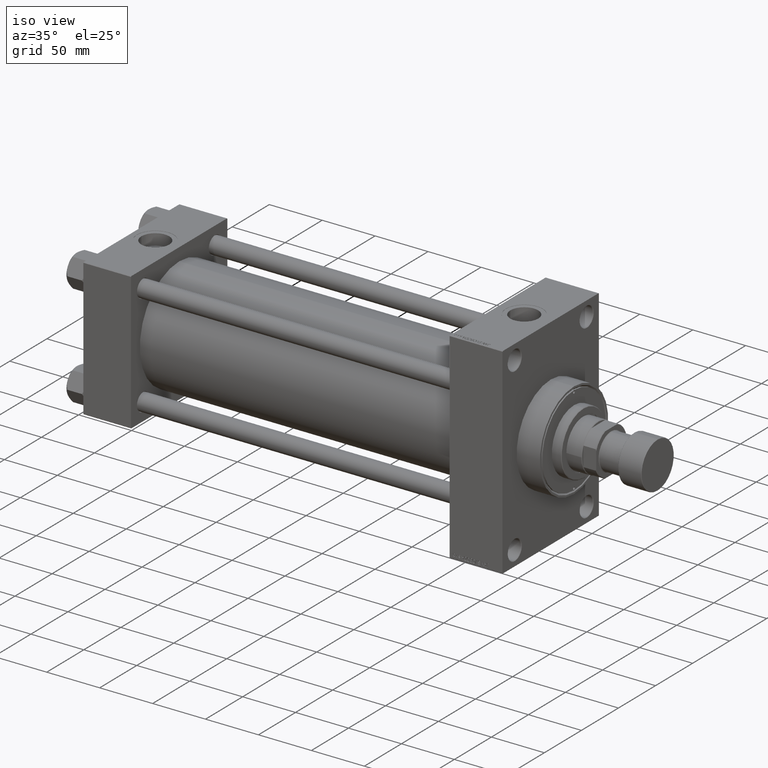
[diagram: clean part render]
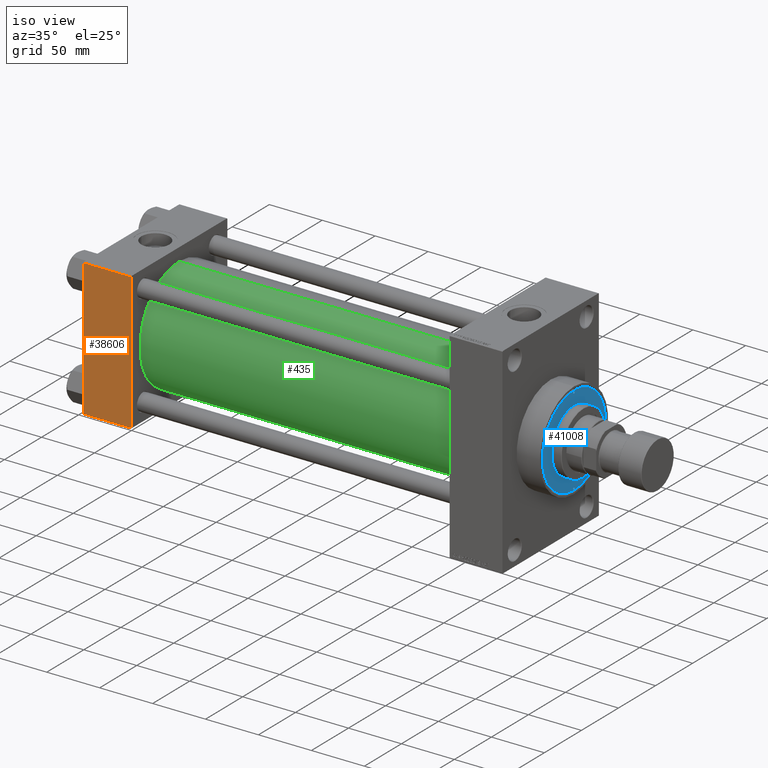
[diagram: same view with three faces highlighted in distinct colors, each labeled with its STEP entity id]
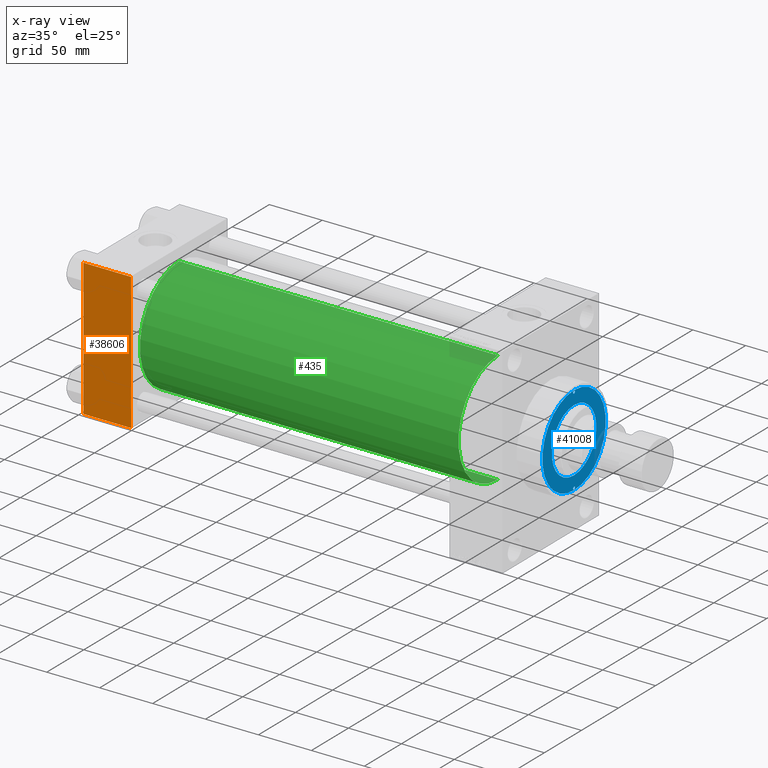
[diagram: x-ray of the same camera — body ghosted, the three highlighted faces saturated]
A machine part, iso view with three faces highlighted in distinct colors.
The next image is the same camera in x-ray (body ghosted, the three faces saturated) — at least one of them is partly hidden behind the body in this view.
Their STEP definitions:

[orange] entity #38606 — the highlighted planar face has unit normal (0, 1, 0).
#3236 = LINE ( 'NONE', #32996, #31542 ) ;
#4190 = DIRECTION ( 'NONE',  ( 0.000000000000000000, 0.000000000000000000, -1.000000000000000000 ) ) ;
#4713 = EDGE_CURVE ( 'NONE', #28928, #41843, #36770, .T. ) ;
#8077 = CARTESIAN_POINT ( 'NONE',  ( 45.00000000000000000, -65.00000000000000000, 65.00000000000000000 ) ) ;
#8187 = VERTEX_POINT ( 'NONE', #32136 ) ;
#13032 = CARTESIAN_POINT ( 'NONE',  ( 45.00000000000000000, -65.00000000000000000, 64.50000000000000000 ) ) ;
#13394 = CARTESIAN_POINT ( 'NONE',  ( 45.00000000000000000, -65.00000000000000000, 64.50000000000000000 ) ) ;
#14826 = CARTESIAN_POINT ( 'NONE',  ( 45.00000000000000000, -65.00000000000000000, -64.49999999999991473 ) ) ;
#15809 = VECTOR ( 'NONE', #22130, 1000.000000000000000 ) ;
#16319 = VECTOR ( 'NONE', #42233, 1000.000000000000000 ) ;
#17159 = EDGE_CURVE ( 'NONE', #34565, #8187, #19875, .T. ) ;
#19875 = LINE ( 'NONE', #13032, #28679 ) ;
#22130 = DIRECTION ( 'NONE',  ( 1.000000000000000000, 0.000000000000000000, 0.000000000000000000 ) ) ;
#22543 = EDGE_CURVE ( 'NONE', #34565, #41843, #45185, .T. ) ;
#23877 = ORIENTED_EDGE ( 'NONE', *, *, #30632, .T. ) ;
#27774 = ORIENTED_EDGE ( 'NONE', *, *, #22543, .F. ) ;
#27896 = DIRECTION ( 'NONE',  ( -1.000000000000000000, 0.000000000000000000, 0.000000000000000000 ) ) ;
#28384 = PLANE ( 'NONE',  #36396 ) ;
#28583 = CARTESIAN_POINT ( 'NONE',  ( 45.00000000000000000, -65.00000000000000000, -64.49999999999991473 ) ) ;
#28639 = CARTESIAN_POINT ( 'NONE',  ( 45.00000000000000000, -65.00000000000000000, 65.00000000000000000 ) ) ;
#28679 = VECTOR ( 'NONE', #27896, 1000.000000000000000 ) ;
#28928 = VERTEX_POINT ( 'NONE', #42275 ) ;
#30632 = EDGE_CURVE ( 'NONE', #8187, #28928, #3236, .T. ) ;
#31542 = VECTOR ( 'NONE', #4190, 1000.000000000000000 ) ;
#31550 = ORIENTED_EDGE ( 'NONE', *, *, #17159, .T. ) ;
#32136 = CARTESIAN_POINT ( 'NONE',  ( 0.000000000000000000, -65.00000000000000000, 64.50000000000000000 ) ) ;
#32996 = CARTESIAN_POINT ( 'NONE',  ( 0.000000000000000000, -65.00000000000000000, 65.00000000000000000 ) ) ;
#34565 = VERTEX_POINT ( 'NONE', #13394 ) ;
#35960 = DIRECTION ( 'NONE',  ( -0.000000000000000000, 1.000000000000000000, 0.000000000000000000 ) ) ;
#36396 = AXIS2_PLACEMENT_3D ( 'NONE', #28639, #35960, #36688 ) ;
#36688 = DIRECTION ( 'NONE',  ( 0.000000000000000000, -0.000000000000000000, 1.000000000000000000 ) ) ;
#36770 = LINE ( 'NONE', #14826, #15809 ) ;
#37844 = EDGE_LOOP ( 'NONE', ( #23877, #48015, #27774, #31550 ) ) ;
#38606 = ADVANCED_FACE ( 'NONE', ( #40353 ), #28384, .F. ) ;
#40353 = FACE_OUTER_BOUND ( 'NONE', #37844, .T. ) ;
#41843 = VERTEX_POINT ( 'NONE', #28583 ) ;
#42233 = DIRECTION ( 'NONE',  ( 0.000000000000000000, 0.000000000000000000, -1.000000000000000000 ) ) ;
#42275 = CARTESIAN_POINT ( 'NONE',  ( 0.000000000000000000, -65.00000000000000000, -64.49999999999991473 ) ) ;
#45185 = LINE ( 'NONE', #8077, #16319 ) ;
#48015 = ORIENTED_EDGE ( 'NONE', *, *, #4713, .T. ) ;

[blue] entity #41008 — the highlighted planar face has unit normal (1, -0, -0).
#1265 = DIRECTION ( 'NONE',  ( 1.000000000000000000, 0.000000000000000000, 0.000000000000000000 ) ) ;
#2850 = FACE_BOUND ( 'NONE', #22866, .T. ) ;
#2952 = AXIS2_PLACEMENT_3D ( 'NONE', #36038, #32369, #28725 ) ;
#3005 = DIRECTION ( 'NONE',  ( 1.000000000000000000, 0.000000000000000000, 0.000000000000000000 ) ) ;
#4077 = EDGE_CURVE ( 'NONE', #10957, #39966, #25925, .T. ) ;
#4369 = EDGE_CURVE ( 'NONE', #39966, #10957, #25156, .T. ) ;
#6024 = FACE_BOUND ( 'NONE', #19935, .T. ) ;
#6977 = DIRECTION ( 'NONE',  ( 1.000000000000000000, 0.000000000000000000, 0.000000000000000000 ) ) ;
#7398 = CARTESIAN_POINT ( 'NONE',  ( 41.00000000000000000, 0.000000000000000000, 43.25999999999999801 ) ) ;
#10370 = CARTESIAN_POINT ( 'NONE',  ( 42.75000000000000000, 5.235365066354935472E-15, 43.25999999999999801 ) ) ;
#10957 = VERTEX_POINT ( 'NONE', #37902 ) ;
#12267 = ORIENTED_EDGE ( 'NONE', *, *, #41777, .F. ) ;
#12398 = CIRCLE ( 'NONE', #48279, 1.250000000000001110 ) ;
#12535 = DIRECTION ( 'NONE',  ( 1.000000000000000000, 0.000000000000000000, 0.000000000000000000 ) ) ;
#13468 = DIRECTION ( 'NONE',  ( -0.000000000000000000, -0.000000000000000000, 1.000000000000000000 ) ) ;
#13604 = FACE_OUTER_BOUND ( 'NONE', #21065, .T. ) ;
#13820 = DIRECTION ( 'NONE',  ( -0.000000000000000000, -0.000000000000000000, 1.000000000000000000 ) ) ;
#14052 = DIRECTION ( 'NONE',  ( 0.000000000000000000, 0.000000000000000000, 1.000000000000000000 ) ) ;
#14492 = DIRECTION ( 'NONE',  ( -0.000000000000000000, -0.000000000000000000, 1.000000000000000000 ) ) ;
#14509 = ORIENTED_EDGE ( 'NONE', *, *, #40114, .F. ) ;
#14553 = CARTESIAN_POINT ( 'NONE',  ( -39.75000000000000000, 0.000000000000000000, 43.25999999999999801 ) ) ;
#14557 = CARTESIAN_POINT ( 'NONE',  ( 39.75000000000000000, 1.530808498934193050E-16, 43.25999999999999801 ) ) ;
#14780 = AXIS2_PLACEMENT_3D ( 'NONE', #45970, #41819, #12535 ) ;
#15278 = DIRECTION ( 'NONE',  ( -0.000000000000000000, -0.000000000000000000, 1.000000000000000000 ) ) ;
#16240 = AXIS2_PLACEMENT_3D ( 'NONE', #31508, #13468, #1265 ) ;
#19247 = DIRECTION ( 'NONE',  ( 0.000000000000000000, 0.000000000000000000, 1.000000000000000000 ) ) ;
#19421 = CARTESIAN_POINT ( 'NONE',  ( -41.00000000000000000, 0.000000000000000000, 43.25999999999999801 ) ) ;
#19855 = EDGE_CURVE ( 'NONE', #24864, #37878, #35664, .T. ) ;
#19935 = EDGE_LOOP ( 'NONE', ( #25264, #12267 ) ) ;
#21065 = EDGE_LOOP ( 'NONE', ( #22069, #31514 ) ) ;
#21810 = CIRCLE ( 'NONE', #14780, 42.75000000000000000 ) ;
#22045 = AXIS2_PLACEMENT_3D ( 'NONE', #41275, #14052, #28918 ) ;
#22069 = ORIENTED_EDGE ( 'NONE', *, *, #48306, .T. ) ;
#22866 = EDGE_LOOP ( 'NONE', ( #27221, #39470 ) ) ;
#24864 = VERTEX_POINT ( 'NONE', #27056 ) ;
#24995 = VERTEX_POINT ( 'NONE', #14553 ) ;
#25156 = CIRCLE ( 'NONE', #34600, 30.00000000000000000 ) ;
#25264 = ORIENTED_EDGE ( 'NONE', *, *, #19855, .F. ) ;
#25925 = CIRCLE ( 'NONE', #22045, 30.00000000000000000 ) ;
#25969 = DIRECTION ( 'NONE',  ( 0.000000000000000000, 0.000000000000000000, 1.000000000000000000 ) ) ;
#26485 = AXIS2_PLACEMENT_3D ( 'NONE', #30114, #25969, #36964 ) ;
#27056 = CARTESIAN_POINT ( 'NONE',  ( 42.25000000000000000, 0.000000000000000000, 43.25999999999999801 ) ) ;
#27221 = ORIENTED_EDGE ( 'NONE', *, *, #4369, .F. ) ;
#28436 = CARTESIAN_POINT ( 'NONE',  ( -41.00000000000000000, 0.000000000000000000, 43.25999999999999801 ) ) ;
#28725 = DIRECTION ( 'NONE',  ( 1.000000000000000000, 0.000000000000000000, -0.000000000000000000 ) ) ;
#28918 = DIRECTION ( 'NONE',  ( 1.000000000000000000, 0.000000000000000000, 0.000000000000000000 ) ) ;
#29748 = DIRECTION ( 'NONE',  ( 1.000000000000000000, 0.000000000000000000, 0.000000000000000000 ) ) ;
#30114 = CARTESIAN_POINT ( 'NONE',  ( 0.000000000000000000, 0.000000000000000000, 43.25999999999999801 ) ) ;
#30954 = CIRCLE ( 'NONE', #37989, 1.250000000000001110 ) ;
#31378 = CARTESIAN_POINT ( 'NONE',  ( -42.75000000000000000, 0.000000000000000000, 43.25999999999999801 ) ) ;
#31484 = VERTEX_POINT ( 'NONE', #35699 ) ;
#31508 = CARTESIAN_POINT ( 'NONE',  ( 41.00000000000000000, 0.000000000000000000, 43.25999999999999801 ) ) ;
#31514 = ORIENTED_EDGE ( 'NONE', *, *, #46450, .T. ) ;
#32369 = DIRECTION ( 'NONE',  ( 0.000000000000000000, 0.000000000000000000, 1.000000000000000000 ) ) ;
#34600 = AXIS2_PLACEMENT_3D ( 'NONE', #40975, #19247, #29748 ) ;
#35664 = CIRCLE ( 'NONE', #43488, 1.250000000000001110 ) ;
#35699 = CARTESIAN_POINT ( 'NONE',  ( -42.25000000000000000, 1.530808498934193050E-16, 43.25999999999999801 ) ) ;
#35844 = CARTESIAN_POINT ( 'NONE',  ( -30.00000000000000000, 0.000000000000000000, 43.25999999999999801 ) ) ;
#36038 = CARTESIAN_POINT ( 'NONE',  ( 0.000000000000000000, 0.000000000000000000, 43.25999999999999801 ) ) ;
#36964 = DIRECTION ( 'NONE',  ( 1.000000000000000000, 0.000000000000000000, 0.000000000000000000 ) ) ;
#37878 = VERTEX_POINT ( 'NONE', #14557 ) ;
#37902 = CARTESIAN_POINT ( 'NONE',  ( 30.00000000000000000, 3.673940397442059178E-15, 43.25999999999999801 ) ) ;
#37989 = AXIS2_PLACEMENT_3D ( 'NONE', #19421, #15278, #42101 ) ;
#39125 = VERTEX_POINT ( 'NONE', #31378 ) ;
#39451 = FACE_BOUND ( 'NONE', #44004, .T. ) ;
#39470 = ORIENTED_EDGE ( 'NONE', *, *, #4077, .F. ) ;
#39966 = VERTEX_POINT ( 'NONE', #35844 ) ;
#40114 = EDGE_CURVE ( 'NONE', #24995, #31484, #30954, .T. ) ;
#40975 = CARTESIAN_POINT ( 'NONE',  ( 0.000000000000000000, 0.000000000000000000, 43.25999999999999801 ) ) ;
#41008 = ADVANCED_FACE ( 'NONE', ( #39451, #6024, #2850, #13604 ), #43364, .T. ) ;
#41174 = CIRCLE ( 'NONE', #16240, 1.250000000000001110 ) ;
#41275 = CARTESIAN_POINT ( 'NONE',  ( 0.000000000000000000, 0.000000000000000000, 43.25999999999999801 ) ) ;
#41777 = EDGE_CURVE ( 'NONE', #37878, #24864, #41174, .T. ) ;
#41819 = DIRECTION ( 'NONE',  ( 0.000000000000000000, 0.000000000000000000, 1.000000000000000000 ) ) ;
#42101 = DIRECTION ( 'NONE',  ( 1.000000000000000000, 0.000000000000000000, 0.000000000000000000 ) ) ;
#42110 = CIRCLE ( 'NONE', #26485, 42.75000000000000000 ) ;
#43364 = PLANE ( 'NONE',  #2952 ) ;
#43488 = AXIS2_PLACEMENT_3D ( 'NONE', #7398, #14492, #3005 ) ;
#43583 = ORIENTED_EDGE ( 'NONE', *, *, #44430, .F. ) ;
#43623 = VERTEX_POINT ( 'NONE', #10370 ) ;
#44004 = EDGE_LOOP ( 'NONE', ( #14509, #43583 ) ) ;
#44430 = EDGE_CURVE ( 'NONE', #31484, #24995, #12398, .T. ) ;
#45970 = CARTESIAN_POINT ( 'NONE',  ( 0.000000000000000000, 0.000000000000000000, 43.25999999999999801 ) ) ;
#46450 = EDGE_CURVE ( 'NONE', #43623, #39125, #42110, .T. ) ;
#48279 = AXIS2_PLACEMENT_3D ( 'NONE', #28436, #13820, #6977 ) ;
#48306 = EDGE_CURVE ( 'NONE', #39125, #43623, #21810, .T. ) ;

[green] entity #435 — the highlighted cylindrical surface (partial cylindrical patch) has radius 53 mm, axis along (-1, -0, -0).
#168 = EDGE_CURVE ( 'NONE', #21969, #36980, #42133, .T. ) ;
#435 = ADVANCED_FACE ( 'NONE', ( #26887 ), #19598, .T. ) ;
#1905 = CARTESIAN_POINT ( 'NONE',  ( 346.0000000000000000, 3.888542821515762466E-15, -53.00000000000000711 ) ) ;
#3949 = DIRECTION ( 'NONE',  ( -1.000000000000000000, -0.000000000000000000, -0.000000000000000000 ) ) ;
#5476 = DIRECTION ( 'NONE',  ( 1.000000000000000000, -0.000000000000000000, 0.000000000000000000 ) ) ;
#7650 = DIRECTION ( 'NONE',  ( 0.000000000000000000, 0.000000000000000000, 1.000000000000000000 ) ) ;
#8931 = EDGE_CURVE ( 'NONE', #14446, #21969, #26617, .T. ) ;
#9163 = AXIS2_PLACEMENT_3D ( 'NONE', #33121, #48293, #47802 ) ;
#9691 = VECTOR ( 'NONE', #3949, 1000.000000000000000 ) ;
#11188 = ORIENTED_EDGE ( 'NONE', *, *, #19292, .F. ) ;
#11213 = EDGE_CURVE ( 'NONE', #25768, #36980, #47170, .T. ) ;
#12529 = AXIS2_PLACEMENT_3D ( 'NONE', #17436, #5476, #32296 ) ;
#13885 = EDGE_LOOP ( 'NONE', ( #29482, #11188, #29048, #16288 ) ) ;
#14446 = VERTEX_POINT ( 'NONE', #15614 ) ;
#14968 = CARTESIAN_POINT ( 'NONE',  ( 44.99999999999998579, 3.888542821515762466E-15, -53.00000000000000711 ) ) ;
#15614 = CARTESIAN_POINT ( 'NONE',  ( 346.0000000000000000, -2.602085213965210642E-15, 53.00000000000000711 ) ) ;
#16288 = ORIENTED_EDGE ( 'NONE', *, *, #168, .T. ) ;
#17436 = CARTESIAN_POINT ( 'NONE',  ( 44.99999999999998579, -2.602085213965210642E-15, 0.000000000000000000 ) ) ;
#19292 = EDGE_CURVE ( 'NONE', #14446, #25768, #30969, .T. ) ;
#19598 = CYLINDRICAL_SURFACE ( 'NONE', #30425, 53.00000000000000711 ) ;
#21056 = CARTESIAN_POINT ( 'NONE',  ( 346.0000000000000000, 3.888542821515762466E-15, -53.00000000000000711 ) ) ;
#21969 = VERTEX_POINT ( 'NONE', #32073 ) ;
#25768 = VERTEX_POINT ( 'NONE', #1905 ) ;
#26617 = LINE ( 'NONE', #41520, #9691 ) ;
#26887 = FACE_OUTER_BOUND ( 'NONE', #13885, .T. ) ;
#29048 = ORIENTED_EDGE ( 'NONE', *, *, #8931, .T. ) ;
#29482 = ORIENTED_EDGE ( 'NONE', *, *, #11213, .F. ) ;
#30425 = AXIS2_PLACEMENT_3D ( 'NONE', #44742, #37880, #7650 ) ;
#30969 = CIRCLE ( 'NONE', #9163, 53.00000000000000711 ) ;
#32073 = CARTESIAN_POINT ( 'NONE',  ( 44.99999999999998579, -2.602085213965210642E-15, 53.00000000000000711 ) ) ;
#32296 = DIRECTION ( 'NONE',  ( 0.000000000000000000, 0.000000000000000000, 1.000000000000000000 ) ) ;
#33121 = CARTESIAN_POINT ( 'NONE',  ( 346.0000000000000000, -2.602085213965210642E-15, 0.000000000000000000 ) ) ;
#36980 = VERTEX_POINT ( 'NONE', #14968 ) ;
#37880 = DIRECTION ( 'NONE',  ( -1.000000000000000000, -0.000000000000000000, -0.000000000000000000 ) ) ;
#41520 = CARTESIAN_POINT ( 'NONE',  ( 346.0000000000000000, -2.602085213965210642E-15, 53.00000000000000711 ) ) ;
#42133 = CIRCLE ( 'NONE', #12529, 53.00000000000000711 ) ;
#44742 = CARTESIAN_POINT ( 'NONE',  ( 346.0000000000000000, -2.602085213965210642E-15, 0.000000000000000000 ) ) ;
#45661 = VECTOR ( 'NONE', #47422, 1000.000000000000000 ) ;
#47170 = LINE ( 'NONE', #21056, #45661 ) ;
#47422 = DIRECTION ( 'NONE',  ( -1.000000000000000000, -0.000000000000000000, -0.000000000000000000 ) ) ;
#47802 = DIRECTION ( 'NONE',  ( 0.000000000000000000, 0.000000000000000000, -1.000000000000000000 ) ) ;
#48293 = DIRECTION ( 'NONE',  ( 1.000000000000000000, 0.000000000000000000, 0.000000000000000000 ) ) ;